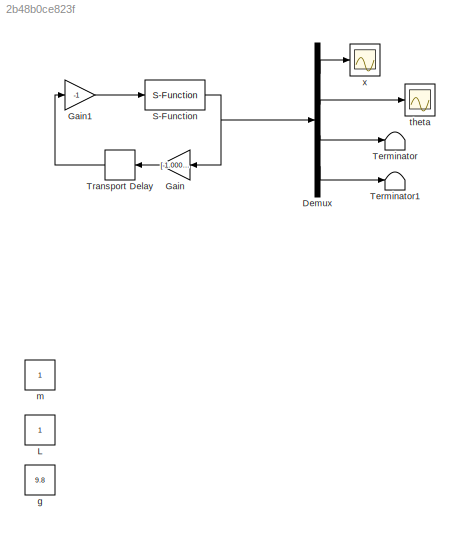
MODEL slx_2b48b0ce823f
KIND model
BLOCK [Demux] Demux
  DisplayOption = bar
  Ports = [1, 4]
BLOCK [Gain] Gain
  Gain = [-1.0000000000022 -325.6026451744055 -6.7416258738856  -318.8551758438228]
  Multiplication = Matrix(K*u)
  OutDataTypeStr = Inherit: Inherit via internal rule
  ParamDataTypeStr = Inherit: Inherit via internal rule
  SaturateOnIntegerOverflow = off
BLOCK [Gain] Gain1
  Gain = -1
  OutDataTypeStr = Inherit: Inherit via internal rule
  ParamDataTypeStr = Inherit: Inherit via internal rule
  SaturateOnIntegerOverflow = off
BLOCK [Constant] L
  Commented = on
BLOCK [S-Function] S-Function
  EnableBusSupport = off
  FunctionName = pendulumNL
  Ports = [1, 1]
BLOCK [Terminator] Terminator
BLOCK [Terminator] Terminator1
BLOCK [TransportDelay] Transport Delay
  DelayTime = .28
  Ports = [1, 1]
BLOCK [Constant] g
  Commented = on
  Value = 9.8
BLOCK [Constant] m
  Commented = on
BLOCK [Scope] theta
  DataFormat = StructureWithTime
  Floating = off
  NumInputPorts = 1
  Ports = [1]
  SampleTime = 0
  SaveName = ScopeData1
  ShowLegends = off
BLOCK [Scope] x
  DataFormat = StructureWithTime
  Floating = off
  NumInputPorts = 1
  Ports = [1]
  SampleTime = 0
  ShowLegends = off
LINE Demux:1 -> x:1
LINE Demux:2 -> theta:1
LINE Demux:3 -> Terminator:1
LINE Demux:4 -> Terminator1:1
LINE Gain1:1 -> S-Function:1
LINE Gain:1 -> Transport Delay:1
NET S-Function:1 -> Demux:1, Gain:1
LINE Transport Delay:1 -> Gain1:1
note: NET lines group one-source signal fan-out (src -> all destinations, sorted); 1:1 wires keep LINE
